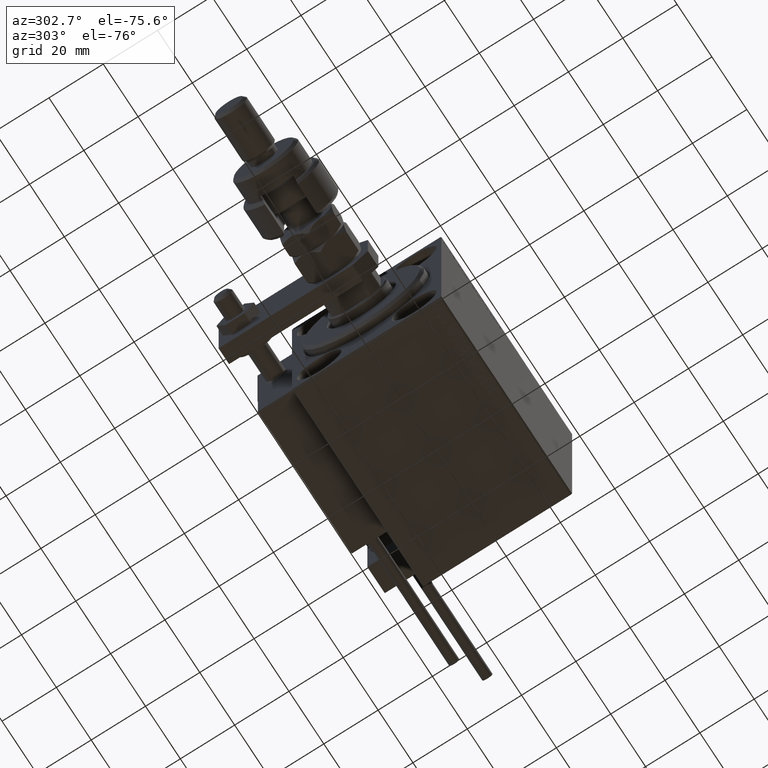
[diagram: clean part render]
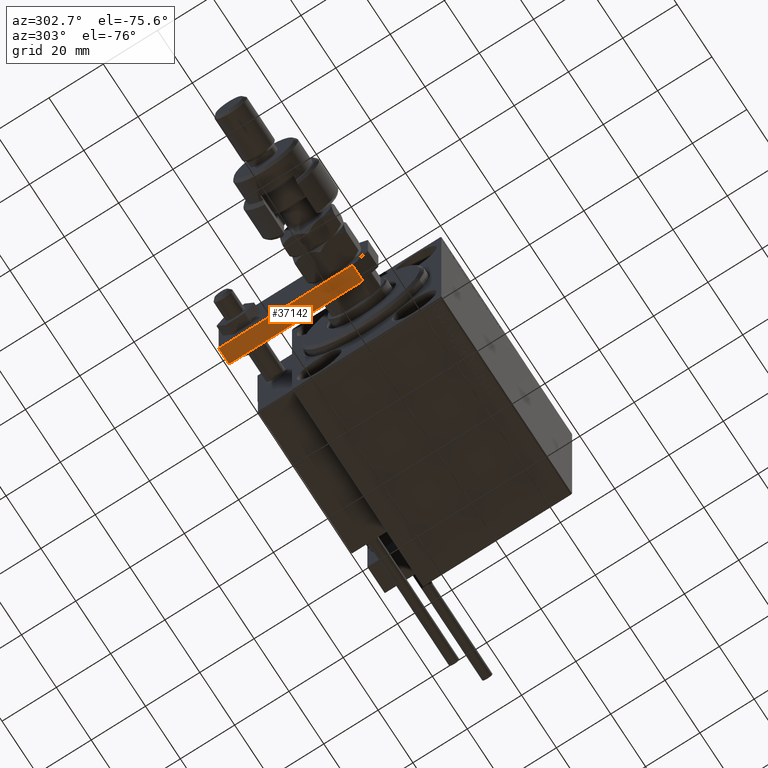
[diagram: same view with one face highlighted and labeled with its STEP entity id]
A machine part, auxiliary view. The second image highlights one B-rep face of the part: STEP entity #37142.
In plain terms, the highlighted planar face has unit normal (0, -0, 1).
Its self-contained STEP definition (entity closure, byte-faithful):
#407 = CARTESIAN_POINT ( 'NONE',  ( -12.49999999999999822, 55.00000000000000000, 6.000000000000000000 ) ) ;
#1378 = VERTEX_POINT ( 'NONE', #30716 ) ;
#5255 = EDGE_CURVE ( 'NONE', #26004, #50090, #25028, .T. ) ;
#6488 = CARTESIAN_POINT ( 'NONE',  ( -12.50000000000000355, 5.660000000000005471, 6.000000000000000000 ) ) ;
#8055 = DIRECTION ( 'NONE',  ( -9.462128050782584375E-17, -1.000000000000000000, 0.000000000000000000 ) ) ;
#10444 = EDGE_LOOP ( 'NONE', ( #29589, #16530, #21317, #12538 ) ) ;
#12538 = ORIENTED_EDGE ( 'NONE', *, *, #22077, .T. ) ;
#16530 = ORIENTED_EDGE ( 'NONE', *, *, #27770, .T. ) ;
#17340 = AXIS2_PLACEMENT_3D ( 'NONE', #407, #32926, #45193 ) ;
#20230 = VECTOR ( 'NONE', #44044, 1000.000000000000000 ) ;
#21035 = CARTESIAN_POINT ( 'NONE',  ( -12.49999999999999822, 55.00000000000000000, 6.000000000000000000 ) ) ;
#21120 = CARTESIAN_POINT ( 'NONE',  ( -12.49999999999999822, 55.00000000000000000, 6.000000000000000000 ) ) ;
#21317 = ORIENTED_EDGE ( 'NONE', *, *, #5255, .F. ) ;
#22077 = EDGE_CURVE ( 'NONE', #26004, #51528, #28352, .T. ) ;
#23913 = EDGE_CURVE ( 'NONE', #51528, #1378, #44585, .T. ) ;
#25028 = LINE ( 'NONE', #21035, #20230 ) ;
#26004 = VERTEX_POINT ( 'NONE', #26536 ) ;
#26536 = CARTESIAN_POINT ( 'NONE',  ( -12.49999999999999822, 55.00000000000000000, 6.000000000000000000 ) ) ;
#27194 = VECTOR ( 'NONE', #33380, 1000.000000000000000 ) ;
#27770 = EDGE_CURVE ( 'NONE', #1378, #50090, #46341, .T. ) ;
#28222 = VECTOR ( 'NONE', #29031, 1000.000000000000000 ) ;
#28352 = LINE ( 'NONE', #21120, #27194 ) ;
#29031 = DIRECTION ( 'NONE',  ( 0.000000000000000000, 0.000000000000000000, 1.000000000000000000 ) ) ;
#29589 = ORIENTED_EDGE ( 'NONE', *, *, #23913, .T. ) ;
#30611 = VECTOR ( 'NONE', #8055, 1000.000000000000000 ) ;
#30716 = CARTESIAN_POINT ( 'NONE',  ( -12.50000000000000355, 5.660000000000005471, 0.000000000000000000 ) ) ;
#32926 = DIRECTION ( 'NONE',  ( 1.000000000000000000, -9.462128050782583143E-17, 0.000000000000000000 ) ) ;
#33380 = DIRECTION ( 'NONE',  ( -0.000000000000000000, -0.000000000000000000, -1.000000000000000000 ) ) ;
#33986 = FACE_OUTER_BOUND ( 'NONE', #10444, .T. ) ;
#37142 = ADVANCED_FACE ( 'NONE', ( #33986 ), #46247, .F. ) ;
#37303 = CARTESIAN_POINT ( 'NONE',  ( -12.50000000000000355, 5.660000000000005471, 6.000000000000000000 ) ) ;
#40601 = CARTESIAN_POINT ( 'NONE',  ( -12.49999999999999822, 55.00000000000000000, 0.000000000000000000 ) ) ;
#41672 = CARTESIAN_POINT ( 'NONE',  ( -12.49999999999999822, 55.00000000000000000, 0.000000000000000000 ) ) ;
#44044 = DIRECTION ( 'NONE',  ( -9.462128050782584375E-17, -1.000000000000000000, 0.000000000000000000 ) ) ;
#44585 = LINE ( 'NONE', #40601, #30611 ) ;
#45193 = DIRECTION ( 'NONE',  ( 9.462128050782583143E-17, 1.000000000000000000, 0.000000000000000000 ) ) ;
#46247 = PLANE ( 'NONE',  #17340 ) ;
#46341 = LINE ( 'NONE', #37303, #28222 ) ;
#50090 = VERTEX_POINT ( 'NONE', #6488 ) ;
#51528 = VERTEX_POINT ( 'NONE', #41672 ) ;